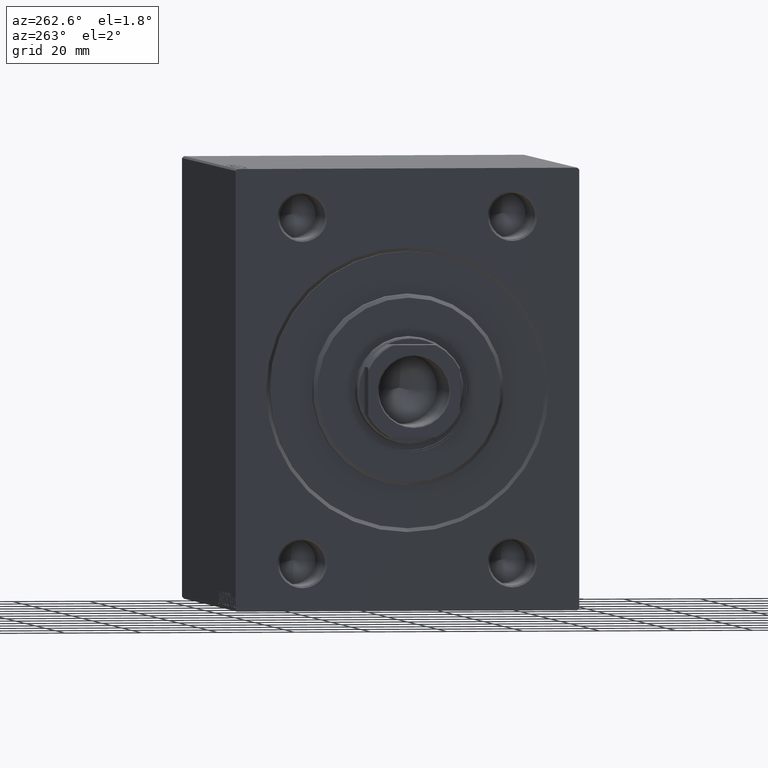
[diagram: clean part render]
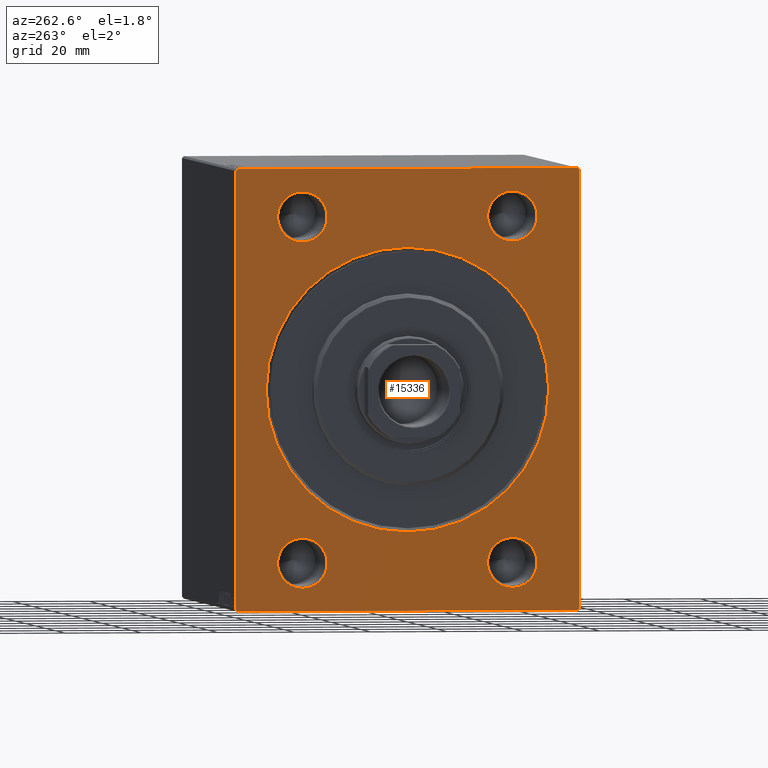
[diagram: same view with one face highlighted and labeled with its STEP entity id]
A machine part, auxiliary view. The second image highlights one B-rep face of the part: STEP entity #15336.
In plain terms, the highlighted planar face has unit normal (1, 0, 0).
Its self-contained STEP definition (entity closure, byte-faithful):
#445 = VECTOR ( 'NONE', #8251, 1000.000000000000114 ) ;
#1516 = CARTESIAN_POINT ( 'NONE',  ( 0.000000000000000000, -45.00000000000000000, -57.49999999999999289 ) ) ;
#2027 = VERTEX_POINT ( 'NONE', #10220 ) ;
#2174 = ORIENTED_EDGE ( 'NONE', *, *, #27057, .F. ) ;
#2256 = DIRECTION ( 'NONE',  ( 0.000000000000000000, 0.000000000000000000, -1.000000000000000000 ) ) ;
#2334 = DIRECTION ( 'NONE',  ( 0.000000000000000000, -1.000000000000000000, -1.541976423090495140E-16 ) ) ;
#2361 = CARTESIAN_POINT ( 'NONE',  ( 0.000000000000000000, -27.49999999999999645, 38.49999999999997868 ) ) ;
#2532 = AXIS2_PLACEMENT_3D ( 'NONE', #40562, #19367, #20009 ) ;
#2758 = ORIENTED_EDGE ( 'NONE', *, *, #13761, .T. ) ;
#2835 = DIRECTION ( 'NONE',  ( 1.000000000000000000, 0.000000000000000000, 0.000000000000000000 ) ) ;
#2842 = CARTESIAN_POINT ( 'NONE',  ( 0.000000000000000000, 45.00000000000002842, -57.49999999999999289 ) ) ;
#3019 = VECTOR ( 'NONE', #15887, 1000.000000000000000 ) ;
#3088 = DIRECTION ( 'NONE',  ( 1.000000000000000000, 0.000000000000000000, 0.000000000000000000 ) ) ;
#3783 = EDGE_CURVE ( 'NONE', #7768, #29376, #25794, .T. ) ;
#4701 = EDGE_CURVE ( 'NONE', #9886, #20621, #24280, .T. ) ;
#4865 = LINE ( 'NONE', #1516, #15669 ) ;
#5290 = DIRECTION ( 'NONE',  ( -0.000000000000000000, 0.7071067811865474617, 0.7071067811865474617 ) ) ;
#5915 = DIRECTION ( 'NONE',  ( 1.000000000000000000, 0.000000000000000000, 0.000000000000000000 ) ) ;
#6131 = CARTESIAN_POINT ( 'NONE',  ( 0.000000000000000000, -27.49999999999999645, 44.99999999999998579 ) ) ;
#6438 = AXIS2_PLACEMENT_3D ( 'NONE', #12476, #18519, #32126 ) ;
#6608 = VERTEX_POINT ( 'NONE', #31302 ) ;
#6708 = ORIENTED_EDGE ( 'NONE', *, *, #23567, .T. ) ;
#6917 = FACE_BOUND ( 'NONE', #7137, .T. ) ;
#7137 = EDGE_LOOP ( 'NONE', ( #40854, #6708 ) ) ;
#7325 = EDGE_LOOP ( 'NONE', ( #35082, #23181 ) ) ;
#7768 = VERTEX_POINT ( 'NONE', #12970 ) ;
#7851 = CARTESIAN_POINT ( 'NONE',  ( 0.000000000000000000, 27.50000000000000355, -51.50000000000002132 ) ) ;
#8163 = EDGE_CURVE ( 'NONE', #33668, #29330, #12698, .T. ) ;
#8251 = DIRECTION ( 'NONE',  ( 0.000000000000000000, -0.7071067811865474617, -0.7071067811865474617 ) ) ;
#8423 = LINE ( 'NONE', #36115, #12289 ) ;
#8696 = DIRECTION ( 'NONE',  ( 1.000000000000000000, 0.000000000000000000, 0.000000000000000000 ) ) ;
#9039 = CARTESIAN_POINT ( 'NONE',  ( 0.000000000000000000, 45.00000000000001421, 57.50000000000000711 ) ) ;
#9048 = CARTESIAN_POINT ( 'NONE',  ( 0.000000000000000000, 44.50000000000001421, 57.50000000000000711 ) ) ;
#9071 = ORIENTED_EDGE ( 'NONE', *, *, #22255, .T. ) ;
#9233 = VERTEX_POINT ( 'NONE', #30136 ) ;
#9313 = VERTEX_POINT ( 'NONE', #14946 ) ;
#9753 = CARTESIAN_POINT ( 'NONE',  ( 0.000000000000000000, 0.000000000000000000, 0.000000000000000000 ) ) ;
#9886 = VERTEX_POINT ( 'NONE', #14575 ) ;
#10190 = DIRECTION ( 'NONE',  ( 0.000000000000000000, 0.000000000000000000, -1.000000000000000000 ) ) ;
#10220 = CARTESIAN_POINT ( 'NONE',  ( 0.000000000000000000, 27.50000000000000355, 38.49999999999997868 ) ) ;
#10378 = ORIENTED_EDGE ( 'NONE', *, *, #43098, .T. ) ;
#10510 = CARTESIAN_POINT ( 'NONE',  ( 0.000000000000000000, 45.00000000000001421, 57.00000000000000711 ) ) ;
#10868 = CARTESIAN_POINT ( 'NONE',  ( 0.000000000000000000, -44.50000000000002842, -57.49999999999999289 ) ) ;
#11177 = CIRCLE ( 'NONE', #36146, 6.500000000000005329 ) ;
#11822 = LINE ( 'NONE', #25668, #445 ) ;
#12051 = VERTEX_POINT ( 'NONE', #34176 ) ;
#12273 = DIRECTION ( 'NONE',  ( 0.000000000000000000, 0.000000000000000000, -1.000000000000000000 ) ) ;
#12289 = VECTOR ( 'NONE', #5290, 1000.000000000000114 ) ;
#12437 = EDGE_LOOP ( 'NONE', ( #19867, #35605, #2174, #2758, #30543, #38853, #36083, #41311 ) ) ;
#12476 = CARTESIAN_POINT ( 'NONE',  ( 0.000000000000000000, -27.49999999999999645, -45.00000000000001421 ) ) ;
#12626 = LINE ( 'NONE', #9048, #37492 ) ;
#12698 = LINE ( 'NONE', #2842, #29395 ) ;
#12733 = CIRCLE ( 'NONE', #18454, 6.500000000000005329 ) ;
#12970 = CARTESIAN_POINT ( 'NONE',  ( 0.000000000000000000, 27.50000000000000355, -38.50000000000000711 ) ) ;
#12973 = DIRECTION ( 'NONE',  ( 0.000000000000000000, 0.000000000000000000, -1.000000000000000000 ) ) ;
#13572 = EDGE_CURVE ( 'NONE', #29376, #7768, #28912, .T. ) ;
#13761 = EDGE_CURVE ( 'NONE', #12051, #29330, #12626, .T. ) ;
#14575 = CARTESIAN_POINT ( 'NONE',  ( 0.000000000000000000, -27.49999999999999645, -51.50000000000002132 ) ) ;
#14946 = CARTESIAN_POINT ( 'NONE',  ( 0.000000000000000000, -45.00000000000000000, 56.99999999999999289 ) ) ;
#15336 = ADVANCED_FACE ( 'NONE', ( #6917, #36852, #40204, #26804, #20321, #43355 ), #33501, .F. ) ;
#15525 = EDGE_CURVE ( 'NONE', #33668, #39849, #11822, .T. ) ;
#15607 = VECTOR ( 'NONE', #2334, 1000.000000000000000 ) ;
#15669 = VECTOR ( 'NONE', #39471, 1000.000000000000000 ) ;
#15777 = EDGE_LOOP ( 'NONE', ( #37669, #10378 ) ) ;
#15871 = CARTESIAN_POINT ( 'NONE',  ( 0.000000000000000000, -27.49999999999999645, -38.50000000000000711 ) ) ;
#15887 = DIRECTION ( 'NONE',  ( 0.000000000000000000, 0.000000000000000000, -1.000000000000000000 ) ) ;
#16125 = DIRECTION ( 'NONE',  ( 0.000000000000000000, 0.000000000000000000, -1.000000000000000000 ) ) ;
#16702 = CARTESIAN_POINT ( 'NONE',  ( 0.000000000000000000, 44.50000000000002842, -57.49999999999999289 ) ) ;
#17529 = EDGE_CURVE ( 'NONE', #9233, #25297, #11177, .T. ) ;
#18454 = AXIS2_PLACEMENT_3D ( 'NONE', #35182, #31363, #28025 ) ;
#18519 = DIRECTION ( 'NONE',  ( 1.000000000000000000, 0.000000000000000000, 0.000000000000000000 ) ) ;
#19037 = CARTESIAN_POINT ( 'NONE',  ( 0.000000000000000000, -44.50000000000002842, -57.49999999999999289 ) ) ;
#19367 = DIRECTION ( 'NONE',  ( 1.000000000000000000, 0.000000000000000000, 0.000000000000000000 ) ) ;
#19867 = ORIENTED_EDGE ( 'NONE', *, *, #37616, .F. ) ;
#20009 = DIRECTION ( 'NONE',  ( 0.000000000000000000, 0.000000000000000000, -1.000000000000000000 ) ) ;
#20321 = FACE_BOUND ( 'NONE', #7325, .T. ) ;
#20515 = CARTESIAN_POINT ( 'NONE',  ( 0.000000000000000000, -44.49999999999997158, 57.49999999999999289 ) ) ;
#20621 = VERTEX_POINT ( 'NONE', #15871 ) ;
#21675 = EDGE_CURVE ( 'NONE', #41851, #6608, #39135, .T. ) ;
#21727 = EDGE_CURVE ( 'NONE', #39365, #33249, #41701, .T. ) ;
#21891 = CARTESIAN_POINT ( 'NONE',  ( 0.000000000000000000, 0.000000000000000000, 0.000000000000000000 ) ) ;
#22028 = VECTOR ( 'NONE', #24726, 1000.000000000000114 ) ;
#22255 = EDGE_CURVE ( 'NONE', #20621, #9886, #44103, .T. ) ;
#22467 = DIRECTION ( 'NONE',  ( 0.000000000000000000, 0.000000000000000000, -1.000000000000000000 ) ) ;
#22729 = EDGE_CURVE ( 'NONE', #28996, #2027, #12733, .T. ) ;
#22751 = CIRCLE ( 'NONE', #23462, 37.00000000000000711 ) ;
#22763 = CARTESIAN_POINT ( 'NONE',  ( 0.000000000000000000, -45.00000000000000000, -57.00000000000002132 ) ) ;
#22995 = CARTESIAN_POINT ( 'NONE',  ( 0.000000000000000000, -27.49999999999999645, 44.99999999999998579 ) ) ;
#23181 = ORIENTED_EDGE ( 'NONE', *, *, #13572, .T. ) ;
#23231 = DIRECTION ( 'NONE',  ( 1.000000000000000000, 0.000000000000000000, 0.000000000000000000 ) ) ;
#23450 = CARTESIAN_POINT ( 'NONE',  ( 0.000000000000000000, 0.000000000000000000, 0.000000000000000000 ) ) ;
#23462 = AXIS2_PLACEMENT_3D ( 'NONE', #21891, #8696, #12273 ) ;
#23567 = EDGE_CURVE ( 'NONE', #6608, #41851, #22751, .T. ) ;
#24154 = EDGE_LOOP ( 'NONE', ( #9071, #41517 ) ) ;
#24280 = CIRCLE ( 'NONE', #6438, 6.500000000000005329 ) ;
#24726 = DIRECTION ( 'NONE',  ( -0.000000000000000000, -0.7071067811865474617, 0.7071067811865474617 ) ) ;
#25297 = VERTEX_POINT ( 'NONE', #2361 ) ;
#25668 = CARTESIAN_POINT ( 'NONE',  ( 0.000000000000000000, 45.00000000000002842, -56.99999999999999289 ) ) ;
#25721 = CARTESIAN_POINT ( 'NONE',  ( 0.000000000000000000, -45.00000000000000000, 57.49999999999999289 ) ) ;
#25794 = CIRCLE ( 'NONE', #38635, 6.500000000000005329 ) ;
#25938 = LINE ( 'NONE', #25721, #3019 ) ;
#26049 = CIRCLE ( 'NONE', #31759, 6.500000000000005329 ) ;
#26608 = CARTESIAN_POINT ( 'NONE',  ( 0.000000000000000000, 27.50000000000000355, 44.99999999999998579 ) ) ;
#26804 = FACE_BOUND ( 'NONE', #36075, .T. ) ;
#26968 = AXIS2_PLACEMENT_3D ( 'NONE', #9753, #2835, #10190 ) ;
#27057 = EDGE_CURVE ( 'NONE', #12051, #29886, #32489, .T. ) ;
#28025 = DIRECTION ( 'NONE',  ( 0.000000000000000000, 0.000000000000000000, -1.000000000000000000 ) ) ;
#28832 = ORIENTED_EDGE ( 'NONE', *, *, #22729, .T. ) ;
#28912 = CIRCLE ( 'NONE', #2532, 6.500000000000005329 ) ;
#28951 = DIRECTION ( 'NONE',  ( 1.000000000000000000, 0.000000000000000000, 0.000000000000000000 ) ) ;
#28996 = VERTEX_POINT ( 'NONE', #30235 ) ;
#29330 = VERTEX_POINT ( 'NONE', #10510 ) ;
#29376 = VERTEX_POINT ( 'NONE', #7851 ) ;
#29395 = VECTOR ( 'NONE', #33676, 1000.000000000000000 ) ;
#29691 = DIRECTION ( 'NONE',  ( 0.000000000000000000, 0.000000000000000000, -1.000000000000000000 ) ) ;
#29886 = VERTEX_POINT ( 'NONE', #20515 ) ;
#30029 = EDGE_CURVE ( 'NONE', #39365, #39849, #4865, .T. ) ;
#30136 = CARTESIAN_POINT ( 'NONE',  ( 0.000000000000000000, -27.49999999999999645, 51.49999999999999289 ) ) ;
#30235 = CARTESIAN_POINT ( 'NONE',  ( 0.000000000000000000, 27.50000000000000355, 51.49999999999999289 ) ) ;
#30543 = ORIENTED_EDGE ( 'NONE', *, *, #8163, .F. ) ;
#31302 = CARTESIAN_POINT ( 'NONE',  ( 0.000000000000000000, 4.531193156845207581E-15, -37.00000000000000711 ) ) ;
#31327 = CARTESIAN_POINT ( 'NONE',  ( 0.000000000000000000, 45.00000000000002842, -56.99999999999999289 ) ) ;
#31363 = DIRECTION ( 'NONE',  ( 1.000000000000000000, 0.000000000000000000, 0.000000000000000000 ) ) ;
#31759 = AXIS2_PLACEMENT_3D ( 'NONE', #26608, #36450, #16125 ) ;
#32068 = CARTESIAN_POINT ( 'NONE',  ( 0.000000000000000000, 27.50000000000000355, -45.00000000000001421 ) ) ;
#32126 = DIRECTION ( 'NONE',  ( 0.000000000000000000, 0.000000000000000000, -1.000000000000000000 ) ) ;
#32489 = LINE ( 'NONE', #9039, #15607 ) ;
#32637 = CARTESIAN_POINT ( 'NONE',  ( 0.000000000000000000, -27.49999999999999645, -45.00000000000001421 ) ) ;
#33249 = VERTEX_POINT ( 'NONE', #22763 ) ;
#33501 = PLANE ( 'NONE',  #39678 ) ;
#33668 = VERTEX_POINT ( 'NONE', #31327 ) ;
#33676 = DIRECTION ( 'NONE',  ( 0.000000000000000000, -1.206764157201257045E-16, 1.000000000000000000 ) ) ;
#34176 = CARTESIAN_POINT ( 'NONE',  ( 0.000000000000000000, 44.50000000000001421, 57.50000000000000711 ) ) ;
#35082 = ORIENTED_EDGE ( 'NONE', *, *, #3783, .T. ) ;
#35155 = ORIENTED_EDGE ( 'NONE', *, *, #42858, .T. ) ;
#35182 = CARTESIAN_POINT ( 'NONE',  ( 0.000000000000000000, 27.50000000000000355, 44.99999999999998579 ) ) ;
#35605 = ORIENTED_EDGE ( 'NONE', *, *, #35685, .T. ) ;
#35685 = EDGE_CURVE ( 'NONE', #9313, #29886, #8423, .T. ) ;
#36075 = EDGE_LOOP ( 'NONE', ( #28832, #35155 ) ) ;
#36083 = ORIENTED_EDGE ( 'NONE', *, *, #30029, .F. ) ;
#36115 = CARTESIAN_POINT ( 'NONE',  ( 0.000000000000000000, -45.00000000000000000, 56.99999999999999289 ) ) ;
#36146 = AXIS2_PLACEMENT_3D ( 'NONE', #6131, #5915, #22467 ) ;
#36211 = DIRECTION ( 'NONE',  ( 1.000000000000000000, 0.000000000000000000, 0.000000000000000000 ) ) ;
#36450 = DIRECTION ( 'NONE',  ( 1.000000000000000000, 0.000000000000000000, 0.000000000000000000 ) ) ;
#36852 = FACE_BOUND ( 'NONE', #24154, .T. ) ;
#37492 = VECTOR ( 'NONE', #43434, 1000.000000000000114 ) ;
#37616 = EDGE_CURVE ( 'NONE', #9313, #33249, #25938, .T. ) ;
#37669 = ORIENTED_EDGE ( 'NONE', *, *, #17529, .T. ) ;
#37679 = AXIS2_PLACEMENT_3D ( 'NONE', #32637, #36211, #2256 ) ;
#38635 = AXIS2_PLACEMENT_3D ( 'NONE', #32068, #28951, #42587 ) ;
#38853 = ORIENTED_EDGE ( 'NONE', *, *, #15525, .T. ) ;
#39135 = CIRCLE ( 'NONE', #26968, 37.00000000000000711 ) ;
#39365 = VERTEX_POINT ( 'NONE', #19037 ) ;
#39471 = DIRECTION ( 'NONE',  ( 0.000000000000000000, 1.000000000000000000, 0.000000000000000000 ) ) ;
#39678 = AXIS2_PLACEMENT_3D ( 'NONE', #23450, #23231, #12973 ) ;
#39849 = VERTEX_POINT ( 'NONE', #16702 ) ;
#40204 = FACE_BOUND ( 'NONE', #15777, .T. ) ;
#40562 = CARTESIAN_POINT ( 'NONE',  ( 0.000000000000000000, 27.50000000000000355, -45.00000000000001421 ) ) ;
#40854 = ORIENTED_EDGE ( 'NONE', *, *, #21675, .T. ) ;
#41060 = CIRCLE ( 'NONE', #43931, 6.500000000000005329 ) ;
#41311 = ORIENTED_EDGE ( 'NONE', *, *, #21727, .T. ) ;
#41517 = ORIENTED_EDGE ( 'NONE', *, *, #4701, .T. ) ;
#41701 = LINE ( 'NONE', #10868, #22028 ) ;
#41851 = VERTEX_POINT ( 'NONE', #43449 ) ;
#42587 = DIRECTION ( 'NONE',  ( 0.000000000000000000, 0.000000000000000000, -1.000000000000000000 ) ) ;
#42858 = EDGE_CURVE ( 'NONE', #2027, #28996, #26049, .T. ) ;
#43098 = EDGE_CURVE ( 'NONE', #25297, #9233, #41060, .T. ) ;
#43355 = FACE_OUTER_BOUND ( 'NONE', #12437, .T. ) ;
#43434 = DIRECTION ( 'NONE',  ( -0.000000000000000000, 0.7071067811865474617, -0.7071067811865474617 ) ) ;
#43449 = CARTESIAN_POINT ( 'NONE',  ( 0.000000000000000000, 0.000000000000000000, 37.00000000000000711 ) ) ;
#43931 = AXIS2_PLACEMENT_3D ( 'NONE', #22995, #3088, #29691 ) ;
#44103 = CIRCLE ( 'NONE', #37679, 6.500000000000005329 ) ;